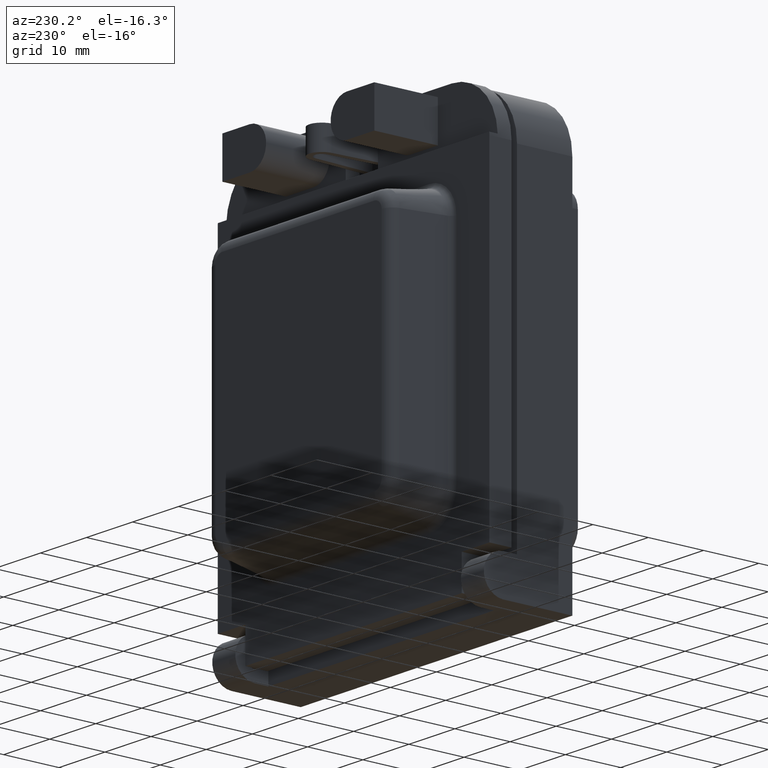
[diagram: clean part render]
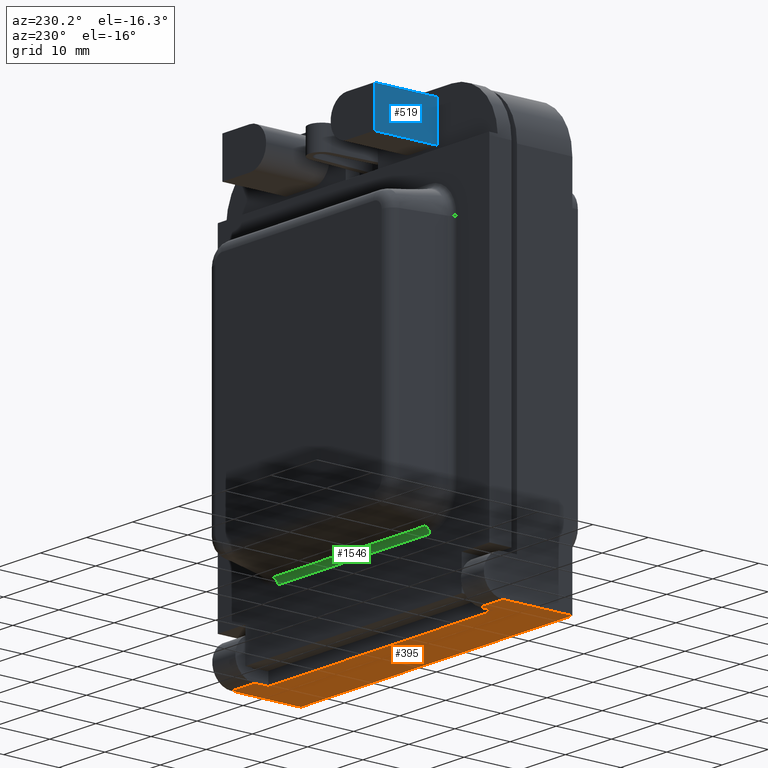
[diagram: same view with three faces highlighted in distinct colors, each labeled with its STEP entity id]
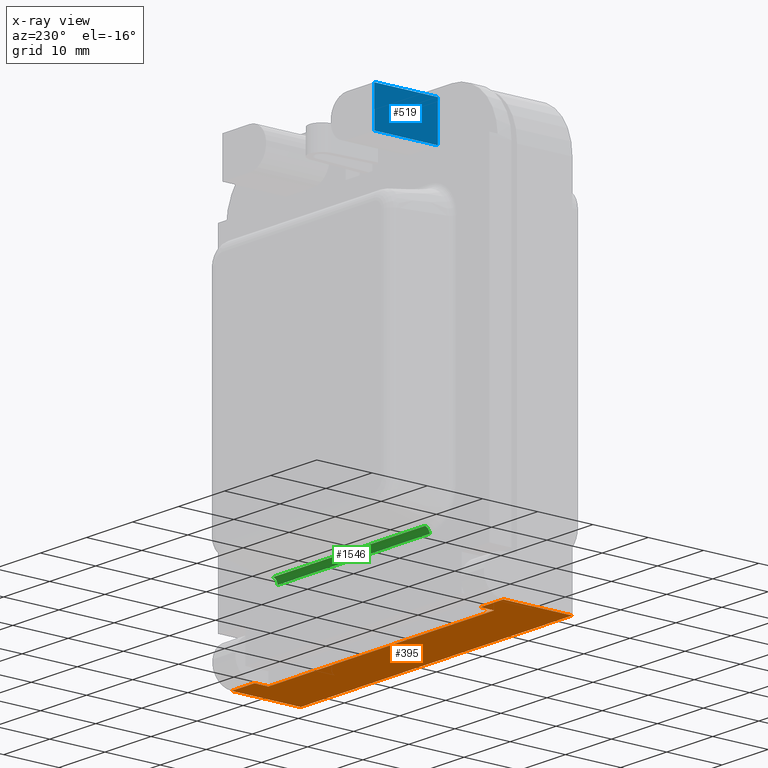
[diagram: x-ray of the same camera — body ghosted, the three highlighted faces saturated]
A machine part, auxiliary view with three faces highlighted in distinct colors.
The next image is the same camera in x-ray (body ghosted, the three faces saturated) — at least one of them is partly hidden behind the body in this view.
Their STEP definitions:

[orange] entity #395 — the highlighted planar face has unit normal (0, 0, -1).
#395 = ADVANCED_FACE ( 'NONE', ( #2576 ), #2621, .T. ) ;
#396 = EDGE_LOOP ( 'NONE', ( #397, #400, #418, #421, #424, #407, #465, #466 ) ) ;
#397 = ORIENTED_EDGE ( 'NONE', *, *, #398, .F. ) ;
#398 = EDGE_CURVE ( 'NONE', #399, #451, #2616, .T. ) ;
#399 = VERTEX_POINT ( 'NONE', #2612 ) ;
#400 = ORIENTED_EDGE ( 'NONE', *, *, #401, .T. ) ;
#401 = EDGE_CURVE ( 'NONE', #399, #402, #2611, .T. ) ;
#402 = VERTEX_POINT ( 'NONE', #2607 ) ;
#403 = VERTEX_POINT ( 'NONE', #2606 ) ;
#407 = ORIENTED_EDGE ( 'NONE', *, *, #408, .F. ) ;
#408 = EDGE_CURVE ( 'NONE', #403, #426, #2655, .T. ) ;
#410 = VERTEX_POINT ( 'NONE', #2651 ) ;
#416 = EDGE_CURVE ( 'NONE', #403, #410, #2645, .T. ) ;
#418 = ORIENTED_EDGE ( 'NONE', *, *, #419, .F. ) ;
#419 = EDGE_CURVE ( 'NONE', #420, #402, #2641, .T. ) ;
#420 = VERTEX_POINT ( 'NONE', #2637 ) ;
#421 = ORIENTED_EDGE ( 'NONE', *, *, #422, .F. ) ;
#422 = EDGE_CURVE ( 'NONE', #423, #420, #2636, .T. ) ;
#423 = VERTEX_POINT ( 'NONE', #2632 ) ;
#424 = ORIENTED_EDGE ( 'NONE', *, *, #425, .F. ) ;
#425 = EDGE_CURVE ( 'NONE', #426, #423, #2631, .T. ) ;
#426 = VERTEX_POINT ( 'NONE', #2627 ) ;
#451 = VERTEX_POINT ( 'NONE', #2718 ) ;
#453 = EDGE_CURVE ( 'NONE', #410, #451, #2777, .T. ) ;
#465 = ORIENTED_EDGE ( 'NONE', *, *, #416, .T. ) ;
#466 = ORIENTED_EDGE ( 'NONE', *, *, #453, .T. ) ;
#2576 = FACE_OUTER_BOUND ( 'NONE', #396, .T. ) ;
#2606 = CARTESIAN_POINT ( 'NONE',  ( 24.50000000000000700, 10.00000000000000000, -38.25000000000000000 ) ) ;
#2607 = CARTESIAN_POINT ( 'NONE',  ( -29.50000000000000700, 0.0000000000000000000, -38.25000000000000000 ) ) ;
#2608 = DIRECTION ( 'NONE',  ( -1.000000000000000000, -0.0000000000000000000, -0.0000000000000000000 ) ) ;
#2609 = VECTOR ( 'NONE', #2608, 1000.000000000000000 ) ;
#2610 = CARTESIAN_POINT ( 'NONE',  ( -29.50000000000000700, 0.0000000000000000000, -38.25000000000000000 ) ) ;
#2611 = LINE ( 'NONE', #2610, #2609 ) ;
#2612 = CARTESIAN_POINT ( 'NONE',  ( 29.50000000000000700, 0.0000000000000000000, -38.25000000000000000 ) ) ;
#2613 = DIRECTION ( 'NONE',  ( 0.0000000000000000000, 1.000000000000000000, 0.0000000000000000000 ) ) ;
#2614 = VECTOR ( 'NONE', #2613, 1000.000000000000000 ) ;
#2615 = CARTESIAN_POINT ( 'NONE',  ( 29.50000000000000700, 10.00000000000000000, -38.25000000000000000 ) ) ;
#2616 = LINE ( 'NONE', #2615, #2614 ) ;
#2617 = DIRECTION ( 'NONE',  ( -1.000000000000000000, 0.0000000000000000000, -0.0000000000000000000 ) ) ;
#2618 = DIRECTION ( 'NONE',  ( 0.0000000000000000000, 0.0000000000000000000, -1.000000000000000000 ) ) ;
#2619 = CARTESIAN_POINT ( 'NONE',  ( 24.50000000000000700, 10.00000000000000000, -38.25000000000000000 ) ) ;
#2620 = AXIS2_PLACEMENT_3D ( 'NONE', #2619, #2618, #2617 ) ;
#2621 = PLANE ( 'NONE',  #2620 ) ;
#2627 = CARTESIAN_POINT ( 'NONE',  ( -24.50000000000000700, 10.00000000000000000, -38.25000000000000000 ) ) ;
#2628 = DIRECTION ( 'NONE',  ( 0.0000000000000000000, 1.000000000000000000, 0.0000000000000000000 ) ) ;
#2629 = VECTOR ( 'NONE', #2628, 1000.000000000000000 ) ;
#2630 = CARTESIAN_POINT ( 'NONE',  ( -24.50000000000000700, 10.00000000000000000, -38.25000000000000000 ) ) ;
#2631 = LINE ( 'NONE', #2630, #2629 ) ;
#2632 = CARTESIAN_POINT ( 'NONE',  ( -24.50000000000000700, 12.49999999999999600, -38.25000000000000000 ) ) ;
#2633 = DIRECTION ( 'NONE',  ( -1.000000000000000000, 0.0000000000000000000, 0.0000000000000000000 ) ) ;
#2634 = VECTOR ( 'NONE', #2633, 1000.000000000000000 ) ;
#2635 = CARTESIAN_POINT ( 'NONE',  ( -24.50000000000000700, 12.49999999999999600, -38.25000000000000000 ) ) ;
#2636 = LINE ( 'NONE', #2635, #2634 ) ;
#2637 = CARTESIAN_POINT ( 'NONE',  ( -29.50000000000000700, 12.49999999999999600, -38.25000000000000000 ) ) ;
#2638 = DIRECTION ( 'NONE',  ( -0.0000000000000000000, -1.000000000000000000, -0.0000000000000000000 ) ) ;
#2639 = VECTOR ( 'NONE', #2638, 1000.000000000000000 ) ;
#2640 = CARTESIAN_POINT ( 'NONE',  ( -29.50000000000000700, 10.00000000000000000, -38.25000000000000000 ) ) ;
#2641 = LINE ( 'NONE', #2640, #2639 ) ;
#2642 = DIRECTION ( 'NONE',  ( 0.0000000000000000000, 1.000000000000000000, 0.0000000000000000000 ) ) ;
#2643 = VECTOR ( 'NONE', #2642, 1000.000000000000000 ) ;
#2644 = CARTESIAN_POINT ( 'NONE',  ( 24.50000000000000700, 10.00000000000000000, -38.25000000000000000 ) ) ;
#2645 = LINE ( 'NONE', #2644, #2643 ) ;
#2651 = CARTESIAN_POINT ( 'NONE',  ( 24.50000000000000700, 12.49999999999999600, -38.25000000000000000 ) ) ;
#2652 = DIRECTION ( 'NONE',  ( -1.000000000000000000, -0.0000000000000000000, -0.0000000000000000000 ) ) ;
#2653 = VECTOR ( 'NONE', #2652, 1000.000000000000000 ) ;
#2654 = CARTESIAN_POINT ( 'NONE',  ( -29.50000000000000700, 10.00000000000000000, -38.25000000000000000 ) ) ;
#2655 = LINE ( 'NONE', #2654, #2653 ) ;
#2718 = CARTESIAN_POINT ( 'NONE',  ( 29.50000000000000700, 12.49999999999999600, -38.25000000000000000 ) ) ;
#2774 = DIRECTION ( 'NONE',  ( 1.000000000000000000, 0.0000000000000000000, 0.0000000000000000000 ) ) ;
#2775 = VECTOR ( 'NONE', #2774, 1000.000000000000000 ) ;
#2776 = CARTESIAN_POINT ( 'NONE',  ( 24.50000000000000700, 12.49999999999999600, -38.25000000000000000 ) ) ;
#2777 = LINE ( 'NONE', #2776, #2775 ) ;

[blue] entity #519 — the highlighted planar face has unit normal (-1, 0, -0).
#125 = EDGE_CURVE ( 'NONE', #1652, #132, #1989, .T. ) ;
#132 = VERTEX_POINT ( 'NONE', #2005 ) ;
#485 = EDGE_CURVE ( 'NONE', #486, #487, #2855, .T. ) ;
#486 = VERTEX_POINT ( 'NONE', #2851 ) ;
#487 = VERTEX_POINT ( 'NONE', #2850 ) ;
#519 = ADVANCED_FACE ( 'NONE', ( #2933 ), #2918, .T. ) ;
#520 = EDGE_LOOP ( 'NONE', ( #521, #522, #523, #524 ) ) ;
#521 = ORIENTED_EDGE ( 'NONE', *, *, #526, .T. ) ;
#522 = ORIENTED_EDGE ( 'NONE', *, *, #125, .F. ) ;
#523 = ORIENTED_EDGE ( 'NONE', *, *, #538, .F. ) ;
#524 = ORIENTED_EDGE ( 'NONE', *, *, #485, .T. ) ;
#526 = EDGE_CURVE ( 'NONE', #487, #132, #2964, .T. ) ;
#538 = EDGE_CURVE ( 'NONE', #486, #1652, #2970, .T. ) ;
#1652 = VERTEX_POINT ( 'NONE', #6483 ) ;
#1986 = DIRECTION ( 'NONE',  ( 0.0000000000000000000, 0.0000000000000000000, -1.000000000000000000 ) ) ;
#1987 = VECTOR ( 'NONE', #1986, 1000.000000000000000 ) ;
#1988 = CARTESIAN_POINT ( 'NONE',  ( -16.50000000000000000, 13.50000000000000000, 1.049999999999998300 ) ) ;
#1989 = LINE ( 'NONE', #1988, #1987 ) ;
#2005 = CARTESIAN_POINT ( 'NONE',  ( -16.50000000000000000, 13.50000000000000000, 30.25000000000000000 ) ) ;
#2850 = CARTESIAN_POINT ( 'NONE',  ( -16.50000000000000000, 25.00000000000000000, 30.25000000000000000 ) ) ;
#2851 = CARTESIAN_POINT ( 'NONE',  ( -16.50000000000000000, 25.00000000000000000, 37.25000000000000000 ) ) ;
#2852 = DIRECTION ( 'NONE',  ( 0.0000000000000000000, -0.0000000000000000000, -1.000000000000000000 ) ) ;
#2853 = VECTOR ( 'NONE', #2852, 1000.000000000000000 ) ;
#2854 = CARTESIAN_POINT ( 'NONE',  ( -16.50000000000000000, 25.00000000000000000, 30.25000000000000000 ) ) ;
#2855 = LINE ( 'NONE', #2854, #2853 ) ;
#2914 = DIRECTION ( 'NONE',  ( -0.0000000000000000000, 0.0000000000000000000, 1.000000000000000000 ) ) ;
#2915 = DIRECTION ( 'NONE',  ( -1.000000000000000000, 0.0000000000000000000, -0.0000000000000000000 ) ) ;
#2916 = CARTESIAN_POINT ( 'NONE',  ( -16.50000000000000000, 25.00000000000000000, 30.25000000000000000 ) ) ;
#2917 = AXIS2_PLACEMENT_3D ( 'NONE', #2916, #2915, #2914 ) ;
#2918 = PLANE ( 'NONE',  #2917 ) ;
#2933 = FACE_OUTER_BOUND ( 'NONE', #520, .T. ) ;
#2961 = DIRECTION ( 'NONE',  ( -0.0000000000000000000, -1.000000000000000000, -0.0000000000000000000 ) ) ;
#2962 = VECTOR ( 'NONE', #2961, 1000.000000000000000 ) ;
#2963 = CARTESIAN_POINT ( 'NONE',  ( -16.50000000000000000, 25.00000000000000000, 30.25000000000000000 ) ) ;
#2964 = LINE ( 'NONE', #2963, #2962 ) ;
#2967 = DIRECTION ( 'NONE',  ( -0.0000000000000000000, -1.000000000000000000, -0.0000000000000000000 ) ) ;
#2968 = VECTOR ( 'NONE', #2967, 1000.000000000000000 ) ;
#2969 = CARTESIAN_POINT ( 'NONE',  ( -16.50000000000000000, 25.00000000000000000, 37.25000000000000000 ) ) ;
#2970 = LINE ( 'NONE', #2969, #2968 ) ;
#6483 = CARTESIAN_POINT ( 'NONE',  ( -16.50000000000000000, 13.50000000000000000, 37.25000000000000000 ) ) ;

[green] entity #1546 — the highlighted cylindrical surface (edge-blend (fillet) strip) has radius 1 mm, axis along (1, 0, -0).
#227 = VERTEX_POINT ( 'NONE', #2239 ) ;
#431 = VERTEX_POINT ( 'NONE', #2680 ) ;
#433 = EDGE_CURVE ( 'NONE', #431, #227, #2679, .T. ) ;
#1336 = VERTEX_POINT ( 'NONE', #5364 ) ;
#1399 = EDGE_CURVE ( 'NONE', #1336, #1400, #5635, .T. ) ;
#1400 = VERTEX_POINT ( 'NONE', #5631 ) ;
#1528 = ORIENTED_EDGE ( 'NONE', *, *, #433, .F. ) ;
#1546 = ADVANCED_FACE ( 'NONE', ( #6121 ), #6162, .F. ) ;
#1547 = EDGE_LOOP ( 'NONE', ( #1548, #1549, #1550, #1528 ) ) ;
#1548 = ORIENTED_EDGE ( 'NONE', *, *, #1558, .T. ) ;
#1549 = ORIENTED_EDGE ( 'NONE', *, *, #1399, .F. ) ;
#1550 = ORIENTED_EDGE ( 'NONE', *, *, #1551, .F. ) ;
#1551 = EDGE_CURVE ( 'NONE', #227, #1336, #6161, .T. ) ;
#1558 = EDGE_CURVE ( 'NONE', #431, #1400, #6184, .T. ) ;
#2239 = CARTESIAN_POINT ( 'NONE',  ( 16.49999999999999300, 15.00000000000000000, -26.28909963117728000 ) ) ;
#2676 = DIRECTION ( 'NONE',  ( 1.000000000000000000, 0.0000000000000000000, -1.051347561198065100E-016 ) ) ;
#2677 = VECTOR ( 'NONE', #2676, 1000.000000000000000 ) ;
#2678 = CARTESIAN_POINT ( 'NONE',  ( -19.50000000000000400, 15.00000000000000000, -26.28909963117727200 ) ) ;
#2679 = LINE ( 'NONE', #2678, #2677 ) ;
#2680 = CARTESIAN_POINT ( 'NONE',  ( -16.50000000000000000, 15.00000000000000000, -26.28909963117727600 ) ) ;
#5364 = CARTESIAN_POINT ( 'NONE',  ( 16.49999999999999300, 15.82635182233306800, -25.30429187816507100 ) ) ;
#5631 = CARTESIAN_POINT ( 'NONE',  ( -16.50000000000000000, 15.82635182233306800, -25.30429187816506700 ) ) ;
#5632 = DIRECTION ( 'NONE',  ( -1.000000000000000000, 0.0000000000000000000, 1.051347561198065100E-016 ) ) ;
#5633 = VECTOR ( 'NONE', #5632, 1000.000000000000000 ) ;
#5634 = CARTESIAN_POINT ( 'NONE',  ( 16.49999999999999300, 15.82635182233306800, -25.30429187816507100 ) ) ;
#5635 = LINE ( 'NONE', #5634, #5633 ) ;
#6121 = FACE_OUTER_BOUND ( 'NONE', #1547, .T. ) ;
#6152 = DIRECTION ( 'NONE',  ( 0.0000000000000000000, 0.0000000000000000000, 1.000000000000000000 ) ) ;
#6153 = DIRECTION ( 'NONE',  ( -1.000000000000000000, 0.0000000000000000000, 0.0000000000000000000 ) ) ;
#6154 = CARTESIAN_POINT ( 'NONE',  ( 16.49999999999999300, 16.00000000000000000, -26.28909963117728000 ) ) ;
#6155 = AXIS2_PLACEMENT_3D ( 'NONE', #6154, #6153, #6152 ) ;
#6157 = DIRECTION ( 'NONE',  ( 0.0000000000000000000, 0.0000000000000000000, -1.000000000000000000 ) ) ;
#6158 = DIRECTION ( 'NONE',  ( 1.000000000000000000, 0.0000000000000000000, -1.051347561198065100E-016 ) ) ;
#6159 = CARTESIAN_POINT ( 'NONE',  ( 16.49999999999999300, 16.00000000000000000, -26.28909963117728000 ) ) ;
#6160 = AXIS2_PLACEMENT_3D ( 'NONE', #6159, #6158, #6157 ) ;
#6161 = CIRCLE ( 'NONE', #6155, 1.000000000000000900 ) ;
#6162 = CYLINDRICAL_SURFACE ( 'NONE', #6160, 1.000000000000000900 ) ;
#6176 = DIRECTION ( 'NONE',  ( 0.0000000000000000000, 0.0000000000000000000, 1.000000000000000000 ) ) ;
#6177 = DIRECTION ( 'NONE',  ( -1.000000000000000000, 0.0000000000000000000, 0.0000000000000000000 ) ) ;
#6178 = CARTESIAN_POINT ( 'NONE',  ( -16.50000000000000000, 16.00000000000000000, -26.28909963117727600 ) ) ;
#6179 = AXIS2_PLACEMENT_3D ( 'NONE', #6178, #6177, #6176 ) ;
#6184 = CIRCLE ( 'NONE', #6179, 1.000000000000000900 ) ;